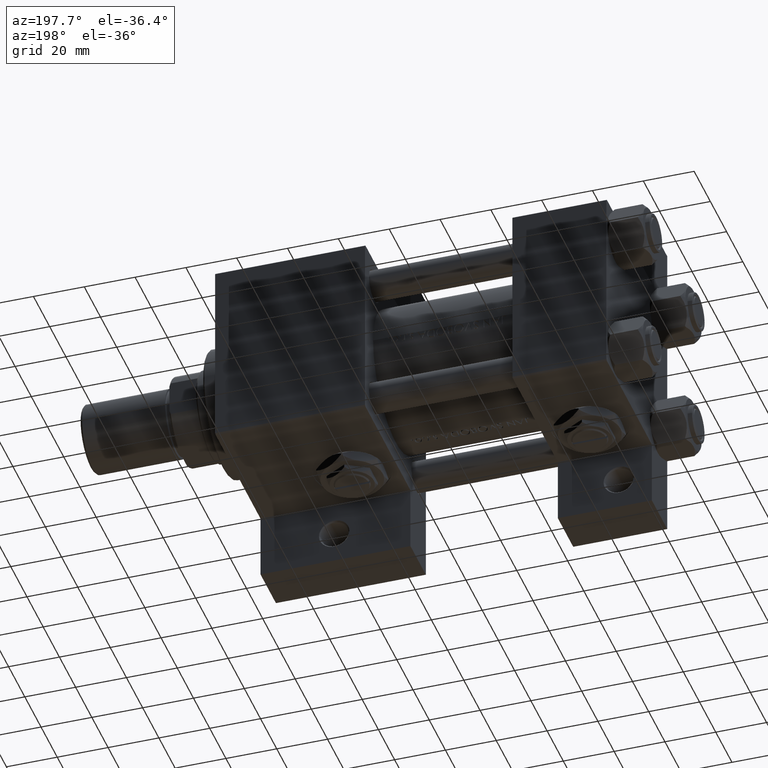
[diagram: clean part render]
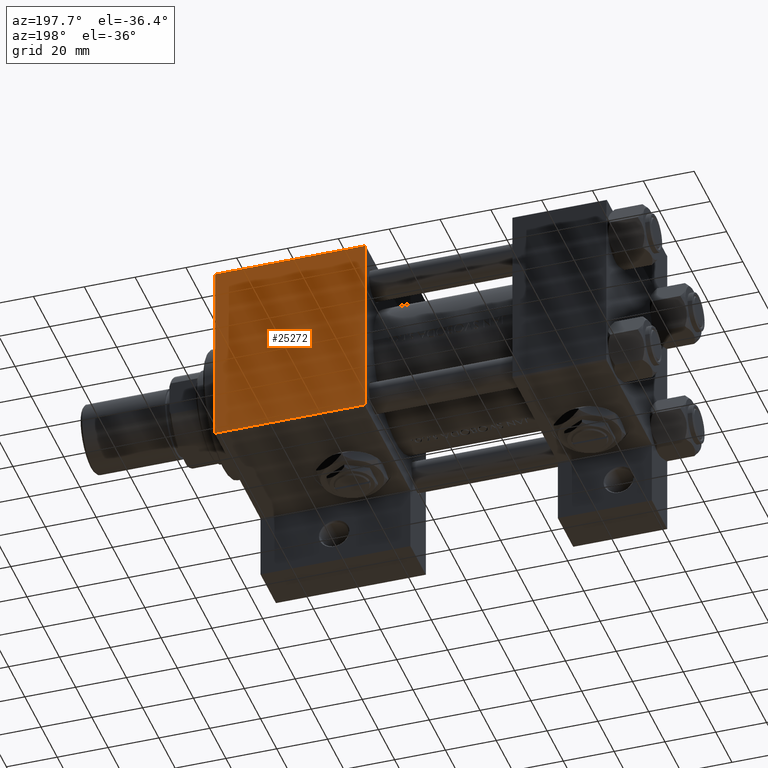
[diagram: same view with one face highlighted and labeled with its STEP entity id]
A machine part, auxiliary view. The second image highlights one B-rep face of the part: STEP entity #25272.
In plain terms, the highlighted planar face has unit normal (0, -1, -0).
Its self-contained STEP definition (entity closure, byte-faithful):
#466 = ORIENTED_EDGE ( 'NONE', *, *, #10456, .F. ) ;
#3335 = LINE ( 'NONE', #34181, #20530 ) ;
#4112 = DIRECTION ( 'NONE',  ( 0.000000000000000000, 1.850371707708594316E-16, -1.000000000000000000 ) ) ;
#8669 = FACE_OUTER_BOUND ( 'NONE', #32571, .T. ) ;
#8911 = DIRECTION ( 'NONE',  ( 0.000000000000000000, 1.000000000000000000, 1.850371707708594316E-16 ) ) ;
#9257 = LINE ( 'NONE', #17067, #22937 ) ;
#10456 = EDGE_CURVE ( 'NONE', #19786, #37241, #31636, .T. ) ;
#17067 = CARTESIAN_POINT ( 'NONE',  ( 95.00000000000000000, 37.00000000000000000, 37.49999999999999289 ) ) ;
#17777 = VERTEX_POINT ( 'NONE', #39627 ) ;
#19684 = LINE ( 'NONE', #25169, #40536 ) ;
#19786 = VERTEX_POINT ( 'NONE', #41835 ) ;
#20530 = VECTOR ( 'NONE', #49636, 1000.000000000000000 ) ;
#21552 = EDGE_CURVE ( 'NONE', #43219, #37241, #19684, .T. ) ;
#22937 = VECTOR ( 'NONE', #32514, 1000.000000000000000 ) ;
#24563 = CARTESIAN_POINT ( 'NONE',  ( 154.0000000000000000, 37.50000000000000000, 37.49999999999999289 ) ) ;
#25169 = CARTESIAN_POINT ( 'NONE',  ( 154.0000000000000000, -36.99999999999997158, 37.49999999999997868 ) ) ;
#25272 = ADVANCED_FACE ( 'NONE', ( #8669 ), #43822, .F. ) ;
#28101 = DIRECTION ( 'NONE',  ( 0.000000000000000000, -1.000000000000000000, -1.850371707708594316E-16 ) ) ;
#28587 = VECTOR ( 'NONE', #28101, 1000.000000000000000 ) ;
#30919 = EDGE_CURVE ( 'NONE', #17777, #43219, #3335, .T. ) ;
#31619 = EDGE_CURVE ( 'NONE', #19786, #17777, #9257, .T. ) ;
#31636 = LINE ( 'NONE', #24563, #28587 ) ;
#31728 = AXIS2_PLACEMENT_3D ( 'NONE', #31930, #4112, #8911 ) ;
#31930 = CARTESIAN_POINT ( 'NONE',  ( 154.0000000000000000, 37.50000000000000000, 37.49999999999999289 ) ) ;
#32514 = DIRECTION ( 'NONE',  ( -1.000000000000000000, 0.000000000000000000, 0.000000000000000000 ) ) ;
#32571 = EDGE_LOOP ( 'NONE', ( #466, #39226, #48942, #45774 ) ) ;
#34181 = CARTESIAN_POINT ( 'NONE',  ( 95.00000000000000000, 37.50000000000000000, 37.49999999999999289 ) ) ;
#37241 = VERTEX_POINT ( 'NONE', #44819 ) ;
#39226 = ORIENTED_EDGE ( 'NONE', *, *, #31619, .T. ) ;
#39627 = CARTESIAN_POINT ( 'NONE',  ( 95.00000000000000000, 37.00000000000000000, 37.49999999999999289 ) ) ;
#40536 = VECTOR ( 'NONE', #46786, 1000.000000000000000 ) ;
#40542 = CARTESIAN_POINT ( 'NONE',  ( 95.00000000000000000, -36.99999999999997158, 37.49999999999997868 ) ) ;
#41835 = CARTESIAN_POINT ( 'NONE',  ( 154.0000000000000000, 37.00000000000000000, 37.49999999999999289 ) ) ;
#43219 = VERTEX_POINT ( 'NONE', #40542 ) ;
#43822 = PLANE ( 'NONE',  #31728 ) ;
#44819 = CARTESIAN_POINT ( 'NONE',  ( 154.0000000000000000, -36.99999999999997158, 37.49999999999997868 ) ) ;
#45774 = ORIENTED_EDGE ( 'NONE', *, *, #21552, .T. ) ;
#46786 = DIRECTION ( 'NONE',  ( 1.000000000000000000, 0.000000000000000000, 0.000000000000000000 ) ) ;
#48942 = ORIENTED_EDGE ( 'NONE', *, *, #30919, .T. ) ;
#49636 = DIRECTION ( 'NONE',  ( 0.000000000000000000, -1.000000000000000000, -1.850371707708594316E-16 ) ) ;